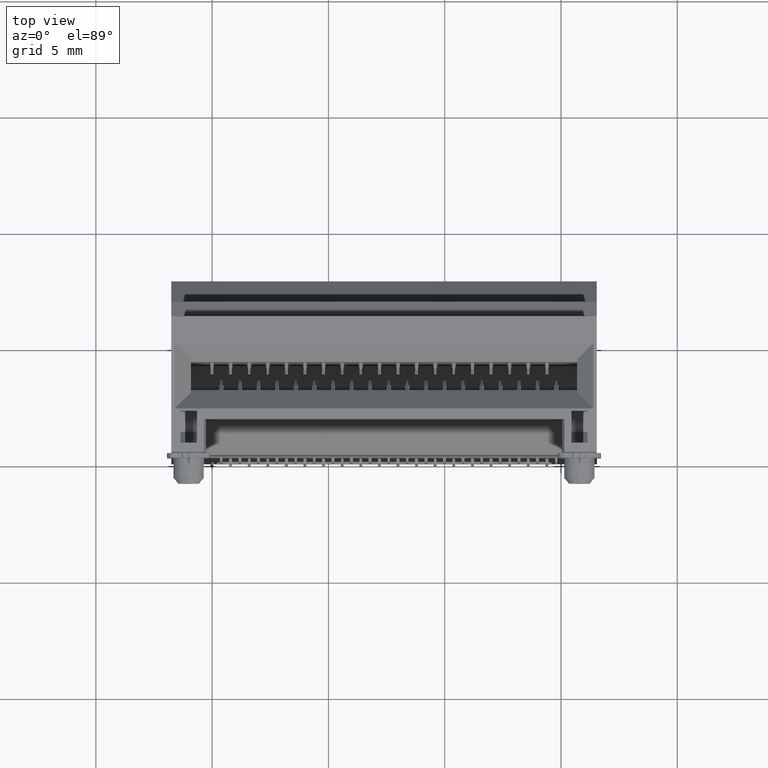
[diagram: clean part render]
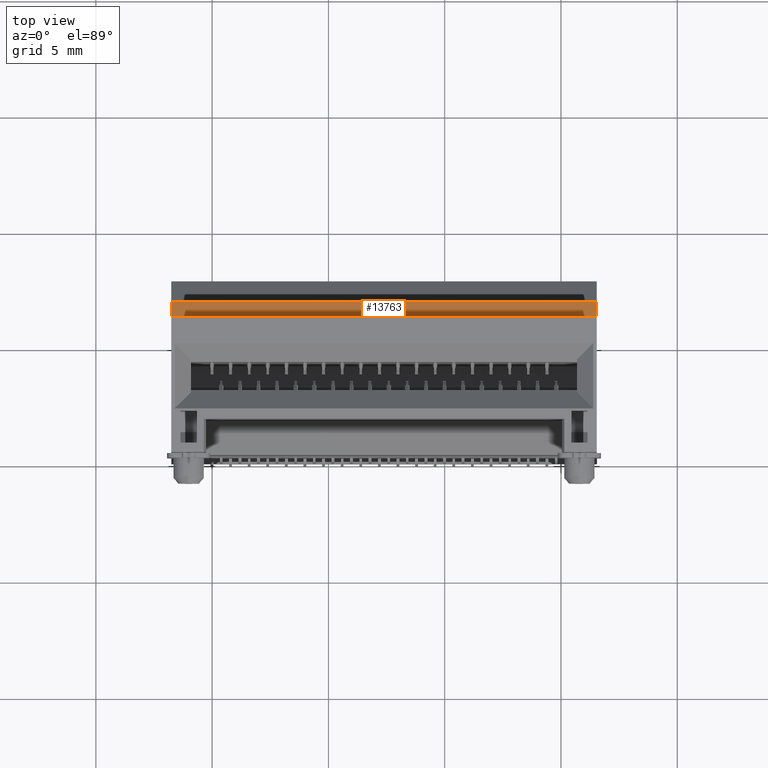
[diagram: same view with one face highlighted and labeled with its STEP entity id]
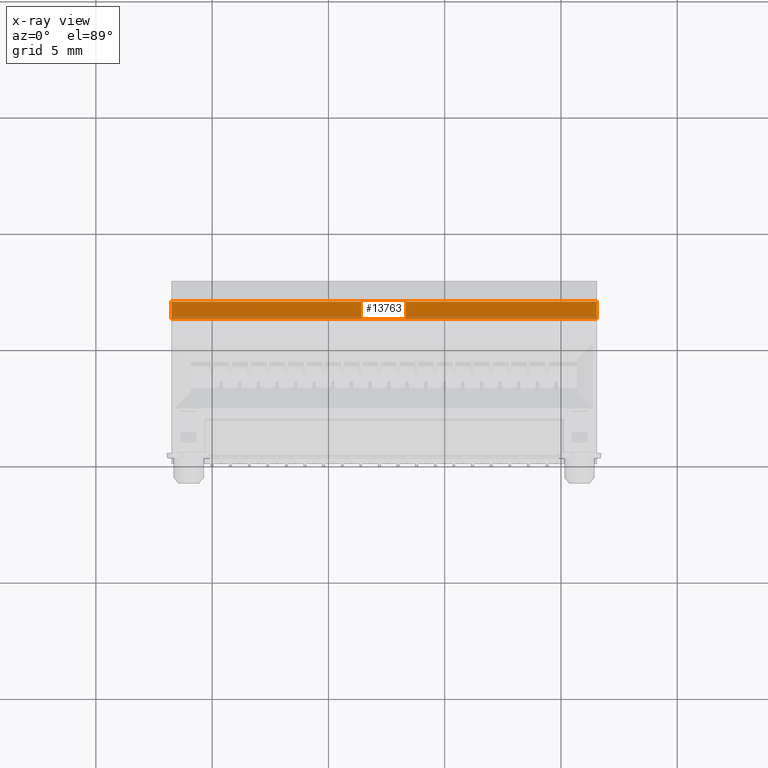
[diagram: x-ray of the same camera — body ghosted, the highlighted face saturated]
A machine part, top view. The second image highlights one B-rep face of the part: STEP entity #13763.
The next image is the same camera in x-ray: the body ghosted, the highlighted face saturated — about 17% of this face is hidden behind the body in this view.
In plain terms, the highlighted planar face has unit normal (0, 0.5547, 0.8321).
Its self-contained STEP definition (entity closure, byte-faithful):
#4975 = DIRECTION ( 'NONE',  ( 6.275552951222907159E-17, 0.5547001962252300356, 0.8320502943378431659 ) ) ;
#7701 = ORIENTED_EDGE ( 'NONE', *, *, #66787, .F. ) ;
#8075 = LINE ( 'NONE', #52463, #22098 ) ;
#8155 = DIRECTION ( 'NONE',  ( 1.000000000000000000, 0.0000000000000000000, -7.542275982507859612E-17 ) ) ;
#10140 = VERTEX_POINT ( 'NONE', #19948 ) ;
#11020 = DIRECTION ( 'NONE',  ( 1.000000000000000000, 0.0000000000000000000, -7.542275982507859612E-17 ) ) ;
#11066 = DIRECTION ( 'NONE',  ( 0.0000000000000000000, -0.8320502943378430549, 0.5547001962252299245 ) ) ;
#13317 = CARTESIAN_POINT ( 'NONE',  ( -11.75999468840026019, 6.049999999999999822, 2.649999999999999911 ) ) ;
#13763 = ADVANCED_FACE ( 'NONE', ( #21364 ), #59155, .T. ) ;
#13911 = EDGE_CURVE ( 'NONE', #63393, #38183, #45446, .T. ) ;
#18776 = LINE ( 'NONE', #19426, #39129 ) ;
#19426 = CARTESIAN_POINT ( 'NONE',  ( -35.58629318397024832, 6.049999999999999822, 2.649999999999999911 ) ) ;
#19948 = CARTESIAN_POINT ( 'NONE',  ( 6.540005311599720983, 6.799999999999999822, 2.149999999999999911 ) ) ;
#21364 = FACE_OUTER_BOUND ( 'NONE', #46690, .T. ) ;
#21958 = ORIENTED_EDGE ( 'NONE', *, *, #49903, .T. ) ;
#22098 = VECTOR ( 'NONE', #11020, 1000.000000000000000 ) ;
#22742 = VERTEX_POINT ( 'NONE', #59647 ) ;
#34430 = AXIS2_PLACEMENT_3D ( 'NONE', #65102, #4975, #59416 ) ;
#38183 = VERTEX_POINT ( 'NONE', #61154 ) ;
#39129 = VECTOR ( 'NONE', #8155, 1000.000000000000000 ) ;
#42920 = LINE ( 'NONE', #63907, #54917 ) ;
#43584 = VECTOR ( 'NONE', #54745, 1000.000000000000114 ) ;
#45446 = LINE ( 'NONE', #13317, #43584 ) ;
#46690 = EDGE_LOOP ( 'NONE', ( #21958, #70289, #7701, #63982 ) ) ;
#49903 = EDGE_CURVE ( 'NONE', #63393, #22742, #18776, .T. ) ;
#52463 = CARTESIAN_POINT ( 'NONE',  ( -35.58629318397024832, 6.799999999999999822, 2.149999999999999911 ) ) ;
#54745 = DIRECTION ( 'NONE',  ( -3.654119439952585817E-16, 0.8320502943378430549, -0.5547001962252299245 ) ) ;
#54917 = VECTOR ( 'NONE', #11066, 1000.000000000000114 ) ;
#59155 = PLANE ( 'NONE',  #34430 ) ;
#59416 = DIRECTION ( 'NONE',  ( 1.000000000000000000, -1.131341397376175860E-16, 0.0000000000000000000 ) ) ;
#59647 = CARTESIAN_POINT ( 'NONE',  ( 6.540005311599720983, 6.049999999999999822, 2.649999999999999911 ) ) ;
#60839 = EDGE_CURVE ( 'NONE', #10140, #22742, #42920, .T. ) ;
#61154 = CARTESIAN_POINT ( 'NONE',  ( -11.75999468840026019, 6.799999999999999822, 2.149999999999999911 ) ) ;
#63393 = VERTEX_POINT ( 'NONE', #75069 ) ;
#63907 = CARTESIAN_POINT ( 'NONE',  ( 6.540005311599720983, 6.049999999999999822, 2.649999999999999911 ) ) ;
#63982 = ORIENTED_EDGE ( 'NONE', *, *, #13911, .F. ) ;
#65102 = CARTESIAN_POINT ( 'NONE',  ( -35.58629318397024832, 6.049999999999999822, 2.649999999999999911 ) ) ;
#66787 = EDGE_CURVE ( 'NONE', #38183, #10140, #8075, .T. ) ;
#70289 = ORIENTED_EDGE ( 'NONE', *, *, #60839, .F. ) ;
#75069 = CARTESIAN_POINT ( 'NONE',  ( -11.75999468840026019, 6.049999999999999822, 2.649999999999999911 ) ) ;